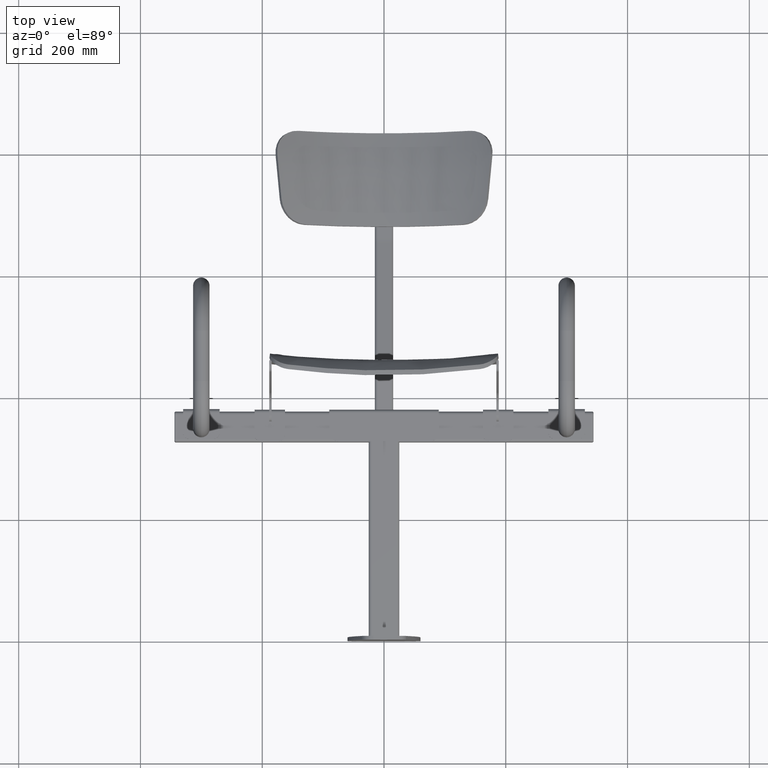
[diagram: clean part render]
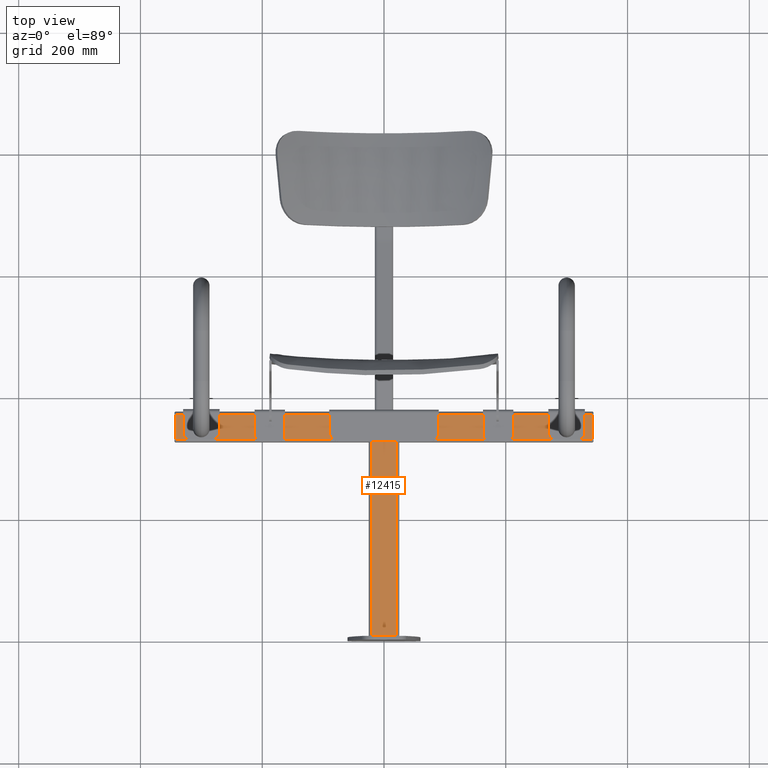
[diagram: same view with one face highlighted and labeled with its STEP entity id]
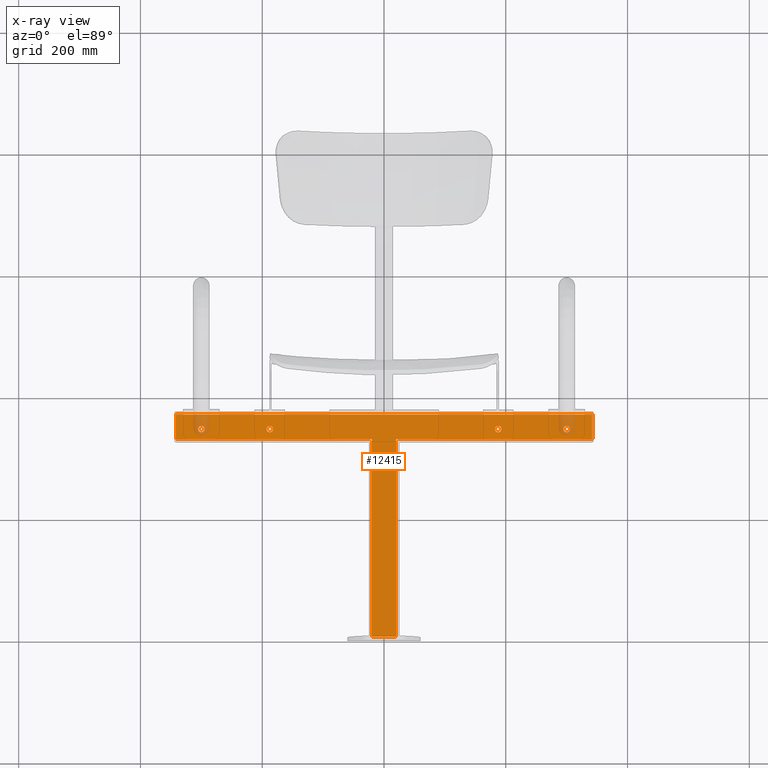
[diagram: x-ray of the same camera — body ghosted, the highlighted face saturated]
A machine part, top view. The second image highlights one B-rep face of the part: STEP entity #12415.
The next image is the same camera in x-ray: the body ghosted, the highlighted face saturated — about 4% of this face is hidden behind the body in this view.
In plain terms, the highlighted planar face has unit normal (0, 0, -1).
Its self-contained STEP definition (entity closure, byte-faithful):
#148 = FACE_BOUND ( 'NONE', #6340, .T. ) ;
#150 = FACE_BOUND ( 'NONE', #6391, .T. ) ;
#155 = FACE_OUTER_BOUND ( 'NONE', #6327, .T. ) ;
#157 = FACE_BOUND ( 'NONE', #6267, .T. ) ;
#158 = FACE_BOUND ( 'NONE', #6377, .T. ) ;
#893 = CARTESIAN_POINT ( 'NONE',  ( 300.0000000000000000, 347.0000000000000600, 25.00000000000000000 ) ) ;
#894 = DIRECTION ( 'NONE',  ( 0.0000000000000000000, 0.0000000000000000000, 1.000000000000000000 ) ) ;
#895 = DIRECTION ( 'NONE',  ( -1.000000000000000000, 0.0000000000000000000, 0.0000000000000000000 ) ) ;
#2419 = ORIENTED_EDGE ( 'NONE', *, *, #7778, .T. ) ;
#2525 = ORIENTED_EDGE ( 'NONE', *, *, #7765, .T. ) ;
#2531 = ORIENTED_EDGE ( 'NONE', *, *, #3730, .T. ) ;
#2551 = ORIENTED_EDGE ( 'NONE', *, *, #7787, .T. ) ;
#3730 = EDGE_CURVE ( 'NONE', #6579, #7860, #6503, .T. ) ;
#3731 = EDGE_CURVE ( 'NONE', #7567, #6580, #6504, .T. ) ;
#3732 = EDGE_CURVE ( 'NONE', #6580, #6597, #6507, .T. ) ;
#3783 = EDGE_CURVE ( 'NONE', #7841, #15795, #17833, .T. ) ;
#3796 = EDGE_CURVE ( 'NONE', #7843, #7861, #17853, .T. ) ;
#3797 = EDGE_CURVE ( 'NONE', #6585, #9755, #17857, .T. ) ;
#3802 = EDGE_CURVE ( 'NONE', #15798, #7856, #17862, .T. ) ;
#5006 = CARTESIAN_POINT ( 'NONE',  ( 305.2500000000000000, 347.0000000000000600, 25.00000000000000000 ) ) ;
#5009 = CARTESIAN_POINT ( 'NONE',  ( -192.7500000000000000, 347.0000000000000000, 25.00000000000000000 ) ) ;
#5556 = CARTESIAN_POINT ( 'NONE',  ( -342.0000000000000600, 371.0000000000000600, 25.00000000000000000 ) ) ;
#5564 = CARTESIAN_POINT ( 'NONE',  ( -305.2500000000000000, 347.0000000000000000, 25.00000000000000000 ) ) ;
#5586 = CARTESIAN_POINT ( 'NONE',  ( -342.0000000000000600, 331.0000000000000000, 25.00000000000000000 ) ) ;
#5616 = CARTESIAN_POINT ( 'NONE',  ( 341.9999999999999400, 371.0000000000000600, 25.00000000000000000 ) ) ;
#5844 = AXIS2_PLACEMENT_3D ( 'NONE', #7301, #7302, #7303 ) ;
#5849 = AXIS2_PLACEMENT_3D ( 'NONE', #7320, #7321, #7322 ) ;
#5858 = AXIS2_PLACEMENT_3D ( 'NONE', #7375, #7376, #7377 ) ;
#5864 = AXIS2_PLACEMENT_3D ( 'NONE', #7407, #7408, #7409 ) ;
#6267 = EDGE_LOOP ( 'NONE', ( #13704, #13703 ) ) ;
#6327 = EDGE_LOOP ( 'NONE', ( #7046, #7047, #7051, #2419, #7014, #2531, #2551, #2525 ) ) ;
#6340 = EDGE_LOOP ( 'NONE', ( #13698, #13697 ) ) ;
#6377 = EDGE_LOOP ( 'NONE', ( #7041, #7050 ) ) ;
#6391 = EDGE_LOOP ( 'NONE', ( #7038, #7039 ) ) ;
#6503 = LINE ( 'NONE', #22582, #6506 ) ;
#6504 = LINE ( 'NONE', #22581, #6508 ) ;
#6506 = VECTOR ( 'NONE', #22568, 1000.000000000000000 ) ;
#6507 = LINE ( 'NONE', #22587, #6510 ) ;
#6508 = VECTOR ( 'NONE', #22586, 1000.000000000000000 ) ;
#6510 = VECTOR ( 'NONE', #22588, 1000.000000000000000 ) ;
#6571 = VERTEX_POINT ( 'NONE', #12911 ) ;
#6575 = VERTEX_POINT ( 'NONE', #12915 ) ;
#6579 = VERTEX_POINT ( 'NONE', #12919 ) ;
#6580 = VERTEX_POINT ( 'NONE', #5556 ) ;
#6585 = VERTEX_POINT ( 'NONE', #5564 ) ;
#6597 = VERTEX_POINT ( 'NONE', #5586 ) ;
#6728 = CARTESIAN_POINT ( 'NONE',  ( 187.5000000000000000, 347.0000000000000600, 25.00000000000000000 ) ) ;
#6729 = DIRECTION ( 'NONE',  ( 0.0000000000000000000, 0.0000000000000000000, 1.000000000000000000 ) ) ;
#6730 = DIRECTION ( 'NONE',  ( -1.000000000000000000, 0.0000000000000000000, 0.0000000000000000000 ) ) ;
#6732 = CARTESIAN_POINT ( 'NONE',  ( -300.0000000000000000, 347.0000000000000000, 25.00000000000000000 ) ) ;
#6733 = DIRECTION ( 'NONE',  ( 0.0000000000000000000, 0.0000000000000000000, 1.000000000000000000 ) ) ;
#6734 = DIRECTION ( 'NONE',  ( 1.000000000000000000, 0.0000000000000000000, 0.0000000000000000000 ) ) ;
#6779 = CARTESIAN_POINT ( 'NONE',  ( -187.5000000000000000, 347.0000000000000000, 25.00000000000000000 ) ) ;
#6780 = DIRECTION ( 'NONE',  ( 0.0000000000000000000, 0.0000000000000000000, 1.000000000000000000 ) ) ;
#6781 = DIRECTION ( 'NONE',  ( 1.000000000000000000, 0.0000000000000000000, 0.0000000000000000000 ) ) ;
#7014 = ORIENTED_EDGE ( 'NONE', *, *, #7781, .T. ) ;
#7038 = ORIENTED_EDGE ( 'NONE', *, *, #3802, .F. ) ;
#7039 = ORIENTED_EDGE ( 'NONE', *, *, #7773, .F. ) ;
#7041 = ORIENTED_EDGE ( 'NONE', *, *, #3797, .F. ) ;
#7046 = ORIENTED_EDGE ( 'NONE', *, *, #3731, .T. ) ;
#7047 = ORIENTED_EDGE ( 'NONE', *, *, #3732, .T. ) ;
#7050 = ORIENTED_EDGE ( 'NONE', *, *, #7784, .F. ) ;
#7051 = ORIENTED_EDGE ( 'NONE', *, *, #7741, .T. ) ;
#7286 = CARTESIAN_POINT ( 'NONE',  ( 0.0000000000000000000, 331.0000000000000000, 25.00000000000000000 ) ) ;
#7287 = DIRECTION ( 'NONE',  ( 1.000000000000000000, 0.0000000000000000000, 0.0000000000000000000 ) ) ;
#7301 = CARTESIAN_POINT ( 'NONE',  ( 300.0000000000000000, 347.0000000000000600, 25.00000000000000000 ) ) ;
#7302 = DIRECTION ( 'NONE',  ( 0.0000000000000000000, 0.0000000000000000000, 1.000000000000000000 ) ) ;
#7303 = DIRECTION ( 'NONE',  ( -1.000000000000000000, 0.0000000000000000000, 0.0000000000000000000 ) ) ;
#7320 = CARTESIAN_POINT ( 'NONE',  ( 187.5000000000000000, 347.0000000000000600, 25.00000000000000000 ) ) ;
#7321 = DIRECTION ( 'NONE',  ( 0.0000000000000000000, 0.0000000000000000000, 1.000000000000000000 ) ) ;
#7322 = DIRECTION ( 'NONE',  ( -1.000000000000000000, 0.0000000000000000000, 0.0000000000000000000 ) ) ;
#7358 = CARTESIAN_POINT ( 'NONE',  ( 342.0000000000011900, 1.139088823265416100E-012, 25.00000000000000000 ) ) ;
#7359 = DIRECTION ( 'NONE',  ( -3.330669073875474400E-015, 1.000000000000000000, 0.0000000000000000000 ) ) ;
#7375 = CARTESIAN_POINT ( 'NONE',  ( -187.5000000000000000, 347.0000000000000000, 25.00000000000000000 ) ) ;
#7376 = DIRECTION ( 'NONE',  ( 0.0000000000000000000, 0.0000000000000000000, 1.000000000000000000 ) ) ;
#7377 = DIRECTION ( 'NONE',  ( 1.000000000000000000, 0.0000000000000000000, 0.0000000000000000000 ) ) ;
#7388 = CARTESIAN_POINT ( 'NONE',  ( -19.99999999999995700, 0.0000000000000000000, 25.00000000000000000 ) ) ;
#7389 = DIRECTION ( 'NONE',  ( 0.0000000000000000000, -1.000000000000000000, 0.0000000000000000000 ) ) ;
#7390 = CARTESIAN_POINT ( 'NONE',  ( 25.00000000000004300, 6.000000000000011500, 25.00000000000000000 ) ) ;
#7391 = DIRECTION ( 'NONE',  ( 1.000000000000000000, 1.214306433183765000E-016, -0.0000000000000000000 ) ) ;
#7405 = CARTESIAN_POINT ( 'NONE',  ( -1.151986900159645000E-013, 331.0000000000000000, 25.00000000000000000 ) ) ;
#7406 = DIRECTION ( 'NONE',  ( 1.000000000000000000, 3.480322961207386200E-016, 0.0000000000000000000 ) ) ;
#7407 = CARTESIAN_POINT ( 'NONE',  ( -300.0000000000000000, 347.0000000000000000, 25.00000000000000000 ) ) ;
#7408 = DIRECTION ( 'NONE',  ( 0.0000000000000000000, 0.0000000000000000000, 1.000000000000000000 ) ) ;
#7409 = DIRECTION ( 'NONE',  ( 1.000000000000000000, 0.0000000000000000000, 0.0000000000000000000 ) ) ;
#7416 = CARTESIAN_POINT ( 'NONE',  ( 182.2500000000000000, 347.0000000000000600, 25.00000000000000000 ) ) ;
#7422 = CARTESIAN_POINT ( 'NONE',  ( 294.7499999999999400, 347.0000000000000600, 25.00000000000000000 ) ) ;
#7433 = CARTESIAN_POINT ( 'NONE',  ( 342.0000000000000600, 331.0000000000001100, 25.00000000000000000 ) ) ;
#7435 = CARTESIAN_POINT ( 'NONE',  ( -182.2500000000000000, 347.0000000000000000, 25.00000000000000000 ) ) ;
#7439 = CARTESIAN_POINT ( 'NONE',  ( 19.99999999999996400, 331.0000000000000000, 25.00000000000000000 ) ) ;
#7440 = CARTESIAN_POINT ( 'NONE',  ( 192.7500000000000000, 347.0000000000000600, 25.00000000000000000 ) ) ;
#7459 = CARTESIAN_POINT ( 'NONE',  ( -294.7499999999999400, 347.0000000000000000, 25.00000000000000000 ) ) ;
#7567 = VERTEX_POINT ( 'NONE', #5616 ) ;
#7741 = EDGE_CURVE ( 'NONE', #6597, #6575, #18101, .T. ) ;
#7743 = EDGE_CURVE ( 'NONE', #15795, #7841, #18107, .T. ) ;
#7748 = EDGE_CURVE ( 'NONE', #7861, #7843, #18116, .T. ) ;
#7765 = EDGE_CURVE ( 'NONE', #7854, #7567, #18158, .T. ) ;
#7773 = EDGE_CURVE ( 'NONE', #7856, #15798, #18171, .T. ) ;
#7778 = EDGE_CURVE ( 'NONE', #6575, #6571, #18178, .T. ) ;
#7781 = EDGE_CURVE ( 'NONE', #6571, #6579, #18183, .T. ) ;
#7784 = EDGE_CURVE ( 'NONE', #9755, #6585, #18188, .T. ) ;
#7787 = EDGE_CURVE ( 'NONE', #7860, #7854, #18192, .T. ) ;
#7841 = VERTEX_POINT ( 'NONE', #7422 ) ;
#7843 = VERTEX_POINT ( 'NONE', #7416 ) ;
#7854 = VERTEX_POINT ( 'NONE', #7433 ) ;
#7856 = VERTEX_POINT ( 'NONE', #7435 ) ;
#7860 = VERTEX_POINT ( 'NONE', #7439 ) ;
#7861 = VERTEX_POINT ( 'NONE', #7440 ) ;
#9755 = VERTEX_POINT ( 'NONE', #7459 ) ;
#12415 = ADVANCED_FACE ( 'NONE', ( #150, #158, #155, #157, #148 ), #20698, .F. ) ;
#12911 = CARTESIAN_POINT ( 'NONE',  ( -19.99999999999995400, 6.000000000000006200, 25.00000000000000000 ) ) ;
#12915 = CARTESIAN_POINT ( 'NONE',  ( -19.99999999999995700, 331.0000000000000000, 25.00000000000000000 ) ) ;
#12919 = CARTESIAN_POINT ( 'NONE',  ( 20.00000000000004300, 6.000000000000010700, 25.00000000000000000 ) ) ;
#13697 = ORIENTED_EDGE ( 'NONE', *, *, #7748, .F. ) ;
#13698 = ORIENTED_EDGE ( 'NONE', *, *, #3796, .F. ) ;
#13703 = ORIENTED_EDGE ( 'NONE', *, *, #7743, .F. ) ;
#13704 = ORIENTED_EDGE ( 'NONE', *, *, #3783, .F. ) ;
#14130 = AXIS2_PLACEMENT_3D ( 'NONE', #893, #894, #895 ) ;
#14134 = AXIS2_PLACEMENT_3D ( 'NONE', #6728, #6729, #6730 ) ;
#14135 = AXIS2_PLACEMENT_3D ( 'NONE', #6732, #6733, #6734 ) ;
#14138 = AXIS2_PLACEMENT_3D ( 'NONE', #6779, #6780, #6781 ) ;
#14948 = AXIS2_PLACEMENT_3D ( 'NONE', #20699, #20695, #20701 ) ;
#15795 = VERTEX_POINT ( 'NONE', #5006 ) ;
#15798 = VERTEX_POINT ( 'NONE', #5009 ) ;
#17833 = CIRCLE ( 'NONE', #14130, 5.250000000000032000 ) ;
#17853 = CIRCLE ( 'NONE', #14134, 5.250000000000004400 ) ;
#17857 = CIRCLE ( 'NONE', #14135, 5.250000000000032000 ) ;
#17862 = CIRCLE ( 'NONE', #14138, 5.250000000000004400 ) ;
#18101 = LINE ( 'NONE', #7286, #18105 ) ;
#18105 = VECTOR ( 'NONE', #7287, 1000.000000000000000 ) ;
#18107 = CIRCLE ( 'NONE', #5844, 5.250000000000032000 ) ;
#18116 = CIRCLE ( 'NONE', #5849, 5.250000000000004400 ) ;
#18158 = LINE ( 'NONE', #7358, #18161 ) ;
#18161 = VECTOR ( 'NONE', #7359, 1000.000000000000000 ) ;
#18171 = CIRCLE ( 'NONE', #5858, 5.250000000000004400 ) ;
#18178 = LINE ( 'NONE', #7388, #18181 ) ;
#18181 = VECTOR ( 'NONE', #7389, 1000.000000000000000 ) ;
#18183 = LINE ( 'NONE', #7390, #18185 ) ;
#18185 = VECTOR ( 'NONE', #7391, 1000.000000000000000 ) ;
#18188 = CIRCLE ( 'NONE', #5864, 5.250000000000032000 ) ;
#18192 = LINE ( 'NONE', #7405, #18194 ) ;
#18194 = VECTOR ( 'NONE', #7406, 1000.000000000000000 ) ;
#20695 = DIRECTION ( 'NONE',  ( 0.0000000000000000000, 0.0000000000000000000, -1.000000000000000000 ) ) ;
#20698 = PLANE ( 'NONE',  #14948 ) ;
#20699 = CARTESIAN_POINT ( 'NONE',  ( 0.0000000000000000000, 0.0000000000000000000, 25.00000000000000000 ) ) ;
#20701 = DIRECTION ( 'NONE',  ( -1.000000000000000000, 0.0000000000000000000, 0.0000000000000000000 ) ) ;
#22568 = DIRECTION ( 'NONE',  ( -2.385244779468109800E-016, 1.000000000000000000, 0.0000000000000000000 ) ) ;
#22581 = CARTESIAN_POINT ( 'NONE',  ( -2.993406556220444800E-014, 371.0000000000000600, 25.00000000000000000 ) ) ;
#22582 = CARTESIAN_POINT ( 'NONE',  ( 20.00000000000004300, 4.770489558936229800E-015, 25.00000000000000000 ) ) ;
#22586 = DIRECTION ( 'NONE',  ( -1.000000000000000000, -8.068481283613057000E-017, 0.0000000000000000000 ) ) ;
#22587 = CARTESIAN_POINT ( 'NONE',  ( -342.0000000000000600, 0.0000000000000000000, 25.00000000000000000 ) ) ;
#22588 = DIRECTION ( 'NONE',  ( 0.0000000000000000000, -1.000000000000000000, 0.0000000000000000000 ) ) ;